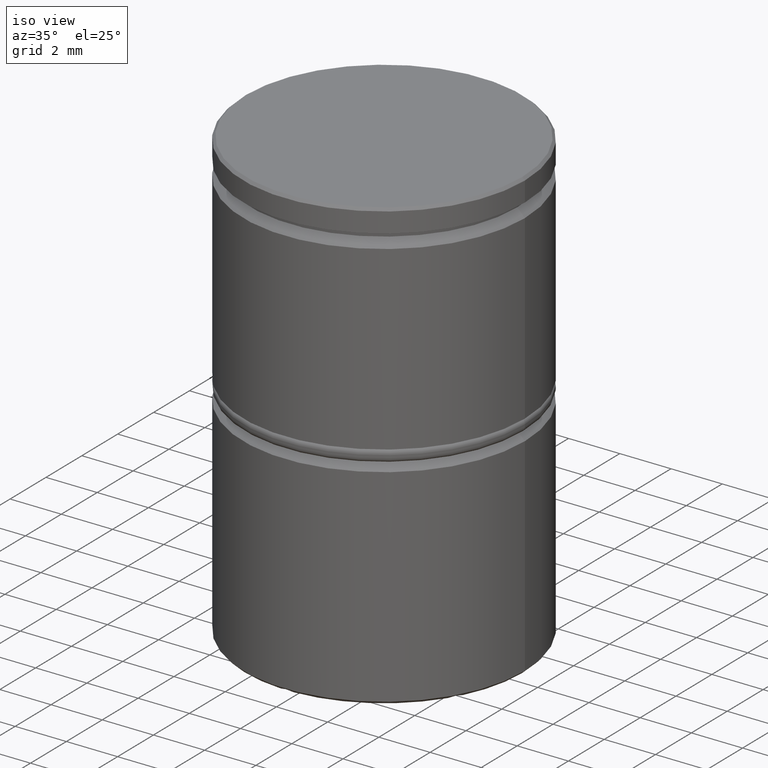
[diagram: clean part render]
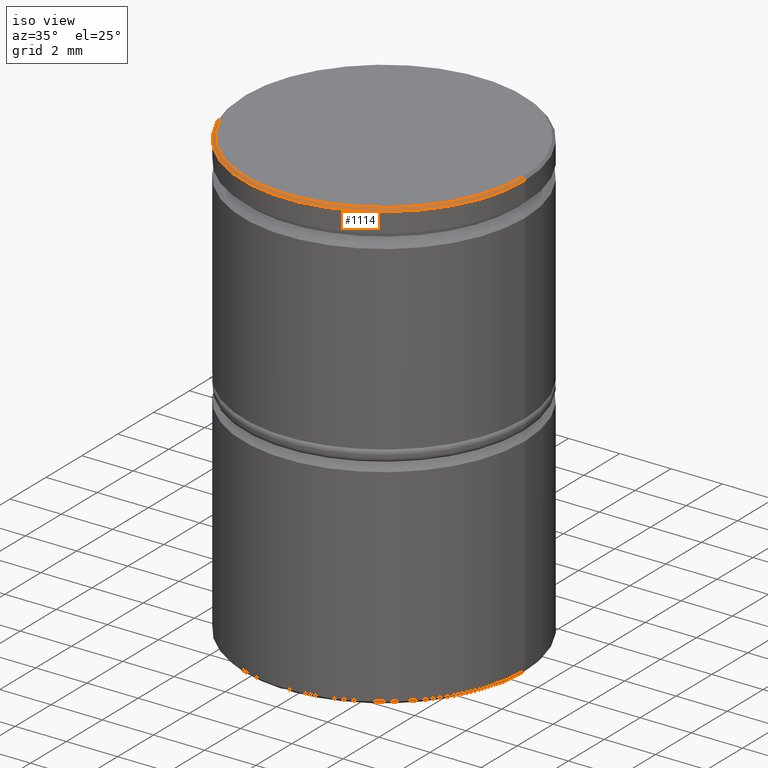
[diagram: same view with one face highlighted and labeled with its STEP entity id]
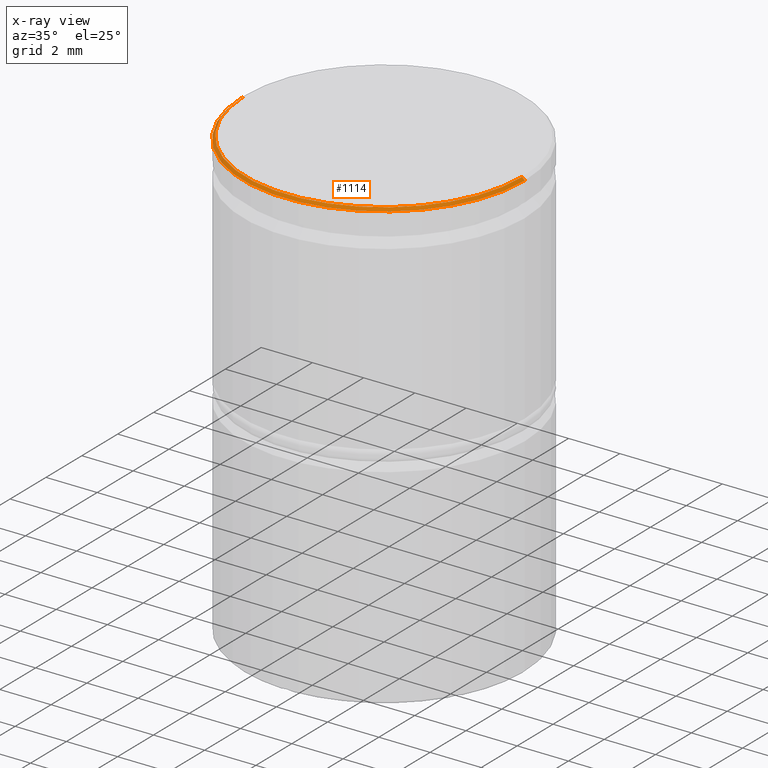
[diagram: x-ray of the same camera — body ghosted, the highlighted face saturated]
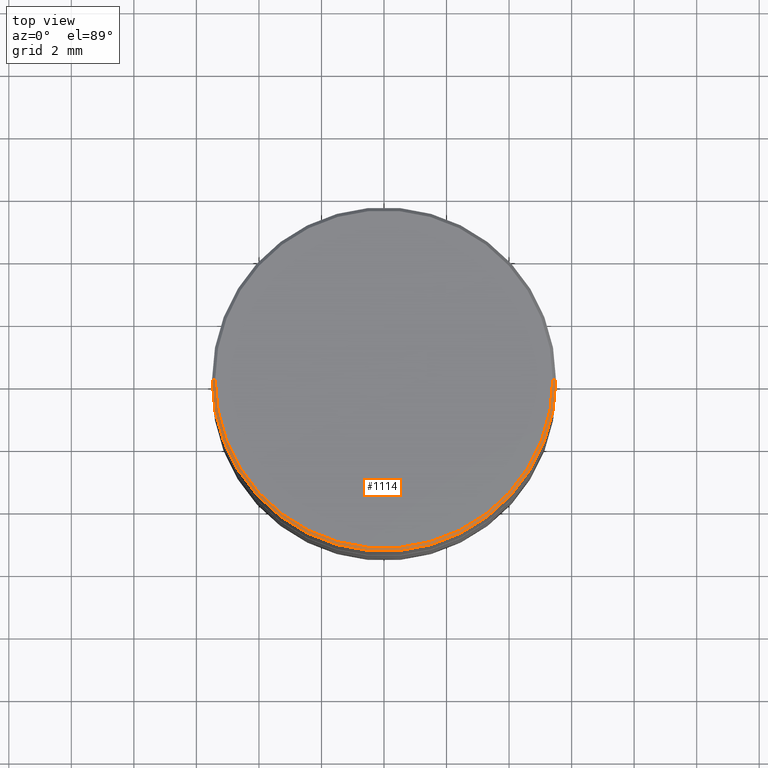
[diagram: same view with one face highlighted and labeled with its STEP entity id]
A machine part, iso view. The second image highlights one B-rep face of the part: STEP entity #1114.
The next image is the same camera in x-ray: the body ghosted, the highlighted face saturated — about 0% of this face is hidden behind the body in this view.
A second angle (top view) of the same face is appended — the face is thin or edge-on in the first view.
In plain terms, the highlighted conical surface has half-angle 45 deg.
Its self-contained STEP definition (entity closure, byte-faithful):
#34 = DIRECTION ( 'NONE',  ( -0.7071067811865414665, 0.000000000000000000, -0.7071067811865536790 ) ) ;
#71 = DIRECTION ( 'NONE',  ( 1.000000000000000000, 0.000000000000000000, 0.000000000000000000 ) ) ;
#82 = EDGE_LOOP ( 'NONE', ( #155, #845, #200, #177 ) ) ;
#144 = CARTESIAN_POINT ( 'NONE',  ( 0.000000000000000000, 0.000000000000000000, -0.09999999999999592548 ) ) ;
#155 = ORIENTED_EDGE ( 'NONE', *, *, #1201, .F. ) ;
#177 = ORIENTED_EDGE ( 'NONE', *, *, #917, .F. ) ;
#184 = LINE ( 'NONE', #317, #903 ) ;
#200 = ORIENTED_EDGE ( 'NONE', *, *, #395, .T. ) ;
#238 = AXIS2_PLACEMENT_3D ( 'NONE', #572, #1033, #71 ) ;
#246 = CARTESIAN_POINT ( 'NONE',  ( -5.400000000000005684, 0.000000000000000000, 0.000000000000000000 ) ) ;
#308 = CIRCLE ( 'NONE', #238, 5.400000000000005684 ) ;
#317 = CARTESIAN_POINT ( 'NONE',  ( 5.400000000000005684, 6.613092715395714369E-16, 0.000000000000000000 ) ) ;
#395 = EDGE_CURVE ( 'NONE', #970, #1107, #647, .T. ) ;
#399 = CARTESIAN_POINT ( 'NONE',  ( -5.500000000000000000, 6.735557395310442023E-16, -0.09999999999999592548 ) ) ;
#407 = CARTESIAN_POINT ( 'NONE',  ( 5.400000000000005684, 6.674325055353078196E-16, 0.000000000000000000 ) ) ;
#414 = CARTESIAN_POINT ( 'NONE',  ( 5.500000000000000000, 0.000000000000000000, -0.09999999999999592548 ) ) ;
#429 = CONICAL_SURFACE ( 'NONE', #1216, 5.400000000000005684, 0.7853981633974396193 ) ;
#572 = CARTESIAN_POINT ( 'NONE',  ( 0.000000000000000000, 0.000000000000000000, 0.000000000000000000 ) ) ;
#647 = LINE ( 'NONE', #869, #1359 ) ;
#845 = ORIENTED_EDGE ( 'NONE', *, *, #1012, .F. ) ;
#869 = CARTESIAN_POINT ( 'NONE',  ( -5.400000000000005684, 0.000000000000000000, 0.000000000000000000 ) ) ;
#903 = VECTOR ( 'NONE', #966, 1000.000000000000000 ) ;
#915 = DIRECTION ( 'NONE',  ( 0.000000000000000000, 0.000000000000000000, -1.000000000000000000 ) ) ;
#917 = EDGE_CURVE ( 'NONE', #1240, #1107, #1125, .T. ) ;
#966 = DIRECTION ( 'NONE',  ( 0.7071067811865414665, 8.659560562354857670E-17, -0.7071067811865536790 ) ) ;
#970 = VERTEX_POINT ( 'NONE', #246 ) ;
#1012 = EDGE_CURVE ( 'NONE', #970, #1248, #308, .T. ) ;
#1033 = DIRECTION ( 'NONE',  ( -0.000000000000000000, -0.000000000000000000, 1.000000000000000000 ) ) ;
#1096 = DIRECTION ( 'NONE',  ( 0.000000000000000000, 0.000000000000000000, -1.000000000000000000 ) ) ;
#1107 = VERTEX_POINT ( 'NONE', #399 ) ;
#1114 = ADVANCED_FACE ( 'NONE', ( #1141 ), #429, .T. ) ;
#1125 = CIRCLE ( 'NONE', #1301, 5.500000000000000000 ) ;
#1141 = FACE_OUTER_BOUND ( 'NONE', #82, .T. ) ;
#1201 = EDGE_CURVE ( 'NONE', #1248, #1240, #184, .T. ) ;
#1216 = AXIS2_PLACEMENT_3D ( 'NONE', #1355, #915, #1347 ) ;
#1226 = DIRECTION ( 'NONE',  ( 1.000000000000000000, 0.000000000000000000, 0.000000000000000000 ) ) ;
#1240 = VERTEX_POINT ( 'NONE', #414 ) ;
#1248 = VERTEX_POINT ( 'NONE', #407 ) ;
#1301 = AXIS2_PLACEMENT_3D ( 'NONE', #144, #1096, #1226 ) ;
#1347 = DIRECTION ( 'NONE',  ( -1.000000000000000000, 0.000000000000000000, 0.000000000000000000 ) ) ;
#1355 = CARTESIAN_POINT ( 'NONE',  ( 0.000000000000000000, 0.000000000000000000, 0.000000000000000000 ) ) ;
#1359 = VECTOR ( 'NONE', #34, 1000.000000000000000 ) ;